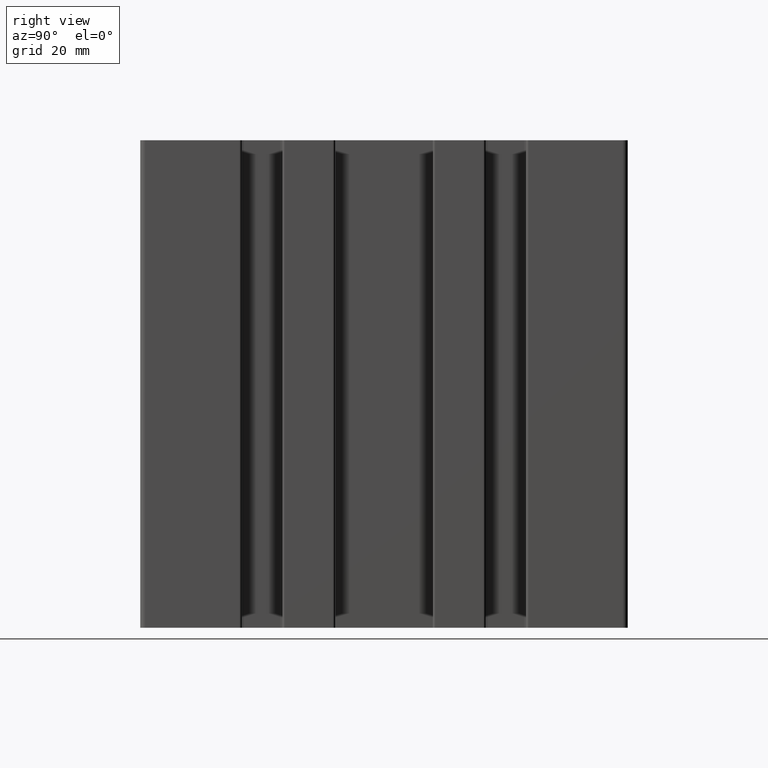
[diagram: clean part render]
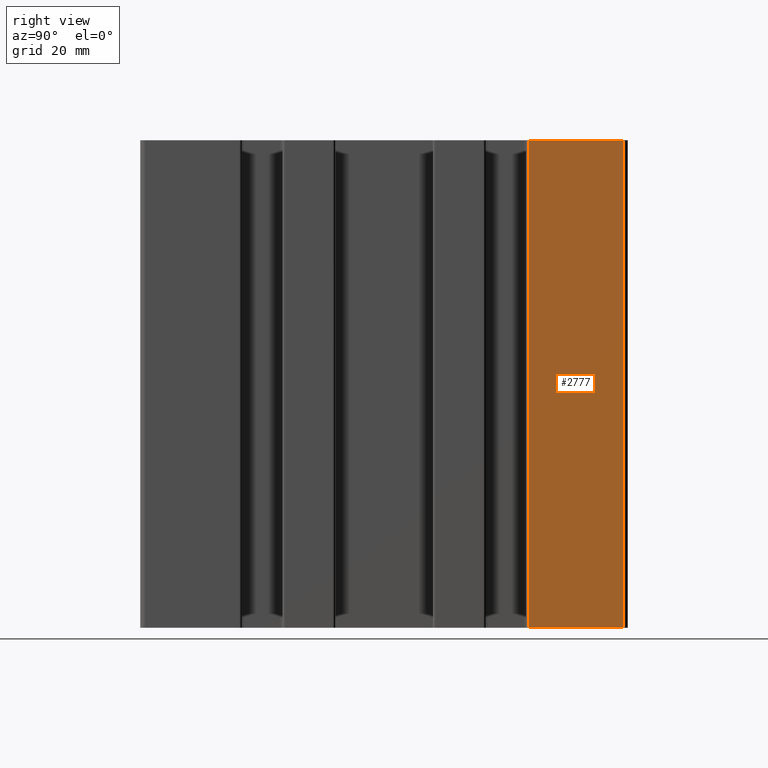
[diagram: same view with one face highlighted and labeled with its STEP entity id]
A machine part, right view. The second image highlights one B-rep face of the part: STEP entity #2777.
In plain terms, the highlighted planar face has unit normal (1, 0, 0).
Its self-contained STEP definition (entity closure, byte-faithful):
#83=PLANE('',#3027);
#207=FACE_OUTER_BOUND('',#356,.T.);
#356=EDGE_LOOP('',(#2315,#2316,#2317,#2318));
#629=LINE('',#4237,#917);
#751=LINE('',#4568,#1039);
#752=LINE('',#4571,#1040);
#753=LINE('',#4572,#1041);
#917=VECTOR('',#3385,19.3499999999863);
#1039=VECTOR('',#3721,100.);
#1040=VECTOR('',#3724,19.3499999999863);
#1041=VECTOR('',#3725,100.);
#1237=VERTEX_POINT('',#4234);
#1238=VERTEX_POINT('',#4236);
#1340=VERTEX_POINT('',#4566);
#1341=VERTEX_POINT('',#4570);
#1545=EDGE_CURVE('',#1237,#1238,#629,.T.);
#1711=EDGE_CURVE('',#1237,#1340,#751,.T.);
#1712=EDGE_CURVE('',#1341,#1340,#752,.T.);
#1713=EDGE_CURVE('',#1238,#1341,#753,.T.);
#2315=ORIENTED_EDGE('',*,*,#1711,.T.);
#2316=ORIENTED_EDGE('',*,*,#1712,.F.);
#2317=ORIENTED_EDGE('',*,*,#1713,.F.);
#2318=ORIENTED_EDGE('',*,*,#1545,.F.);
#2777=ADVANCED_FACE('',(#207),#83,.T.);
#3027=AXIS2_PLACEMENT_3D('',#4569,#3722,#3723);
#3385=DIRECTION('',(2.29503467622934E-16,-1.,0.));
#3721=DIRECTION('',(0.,0.,1.));
#3722=DIRECTION('center_axis',(1.,2.29503467622934E-16,0.));
#3723=DIRECTION('ref_axis',(-3.5527136788005E-16,1.,0.));
#3724=DIRECTION('',(-2.29503467622934E-16,1.,0.));
#3725=DIRECTION('',(0.,0.,1.));
#4234=CARTESIAN_POINT('',(24.9999999999838,48.9999999999982,-50.));
#4236=CARTESIAN_POINT('',(24.9999999999838,29.650000000012,-50.));
#4237=CARTESIAN_POINT('',(24.9999999999838,29.650000000012,-50.));
#4566=CARTESIAN_POINT('',(24.9999999999838,48.9999999999982,50.));
#4568=CARTESIAN_POINT('',(24.9999999999838,48.9999999999982,0.));
#4569=CARTESIAN_POINT('Origin',(24.9999999999838,29.650000000012,0.));
#4570=CARTESIAN_POINT('',(24.9999999999838,29.650000000012,50.));
#4571=CARTESIAN_POINT('',(24.9999999999838,29.650000000012,50.));
#4572=CARTESIAN_POINT('',(24.9999999999838,29.650000000012,0.));